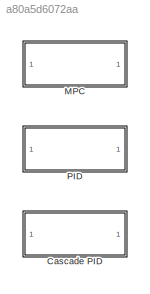
MODEL slx_a80a5d6072aa
KIND library
CONFIG AbsTol = auto
CONFIG EnableMultiTasking = off
CONFIG FixedStep = auto
CONFIG MaxStep = auto
CONFIG MinStep = auto
CONFIG RelTol = 1e-3
CONFIG SampleTimeConstraint = Unconstrained
CONFIG SolverName = VariableStepAuto
CONFIG StartTime = 0.0
CONFIG StopTime = 10.0
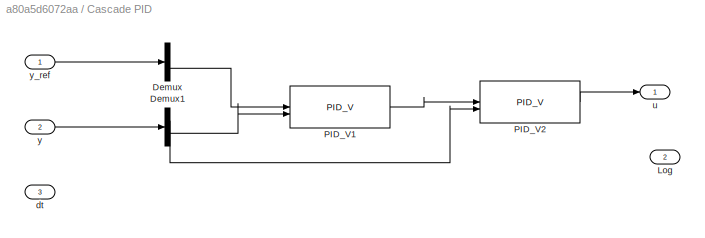
BLOCK [SubSystem] Cascade PID
  Tag = __cs_slx_ctl;
BLOCK [Demux] Cascade PID/Demux
  Outputs = 2
BLOCK [Demux] Cascade PID/Demux1
  Outputs = 2
BLOCK [Outport] Cascade PID/Log
  Port = 2
BLOCK [Reference] Cascade PID/PID_V1  REF=$bdroot/PID_V
  SourceBlock = $bdroot/PID_V
  SourceType = SubSystem
  Tag = __cs_slx_ctl;
BLOCK [Reference] Cascade PID/PID_V2  REF=$bdroot/PID_V
  SourceBlock = $bdroot/PID_V
  SourceType = SubSystem
  Tag = __cs_slx_ctl;
BLOCK [Inport] Cascade PID/dt
  Port = 3
BLOCK [Outport] Cascade PID/u
BLOCK [Inport] Cascade PID/y
  Port = 2
BLOCK [Inport] Cascade PID/y_ref
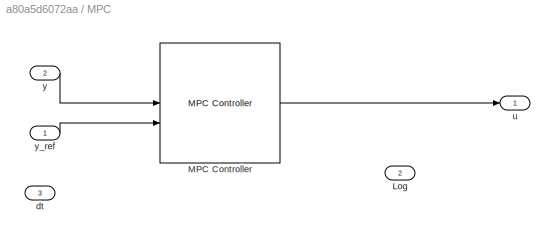
BLOCK [SubSystem] MPC
  InitFcn = load_slx_params('mpc_path', 'mpc')
  Tag = __cs_slx_ctl;
BLOCK [Outport] MPC/Log
  Port = 2
BLOCK [Reference] MPC/MPC Controller  REF=mpclib/MPC Controller  (lib defined in mdl_ae329e0e0455)
  SCDEnableBlockLinearizationSpecification = on
  SourceBlock = mpclib/MPC Controller
  SourceType = MPC
BLOCK [Inport] MPC/dt
  Port = 3
BLOCK [Outport] MPC/u
BLOCK [Inport] MPC/y
  Port = 2
BLOCK [Inport] MPC/y_ref
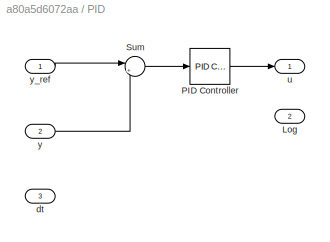
BLOCK [SubSystem] PID
  Tag = __cs_slx_ctl;
BLOCK [Outport] PID/Log
  Port = 2
BLOCK [Reference] PID/PID Controller  REF=slpidlib/PID Controller
  LibrarySourceBlock = simulink/Continuous/PID Controller
  SourceBlock = slpidlib/PID Controller
  SourceType = PID 1dof
BLOCK [Sum] PID/Sum
  Inputs = |+-
BLOCK [Inport] PID/dt
  Port = 3
BLOCK [Outport] PID/u
BLOCK [Inport] PID/y
  Port = 2
BLOCK [Inport] PID/y_ref
LINE Cascade PID/Demux1:1 -> Cascade PID/PID_V2:2
LINE Cascade PID/Demux1:2 -> Cascade PID/PID_V1:2
LINE Cascade PID/Demux:2 -> Cascade PID/PID_V1:1
LINE Cascade PID/PID_V1:1 -> Cascade PID/PID_V2:1
LINE Cascade PID/PID_V2:1 -> Cascade PID/u:1
LINE Cascade PID/y:1 -> Cascade PID/Demux1:1
LINE Cascade PID/y_ref:1 -> Cascade PID/Demux:1
LINE MPC/MPC Controller:1 -> MPC/u:1
LINE MPC/y:1 -> MPC/MPC Controller:1
LINE MPC/y_ref:1 -> MPC/MPC Controller:2
LINE PID/PID Controller:1 -> PID/u:1
LINE PID/Sum:1 -> PID/PID Controller:1
LINE PID/y:1 -> PID/Sum:2
LINE PID/y_ref:1 -> PID/Sum:1
